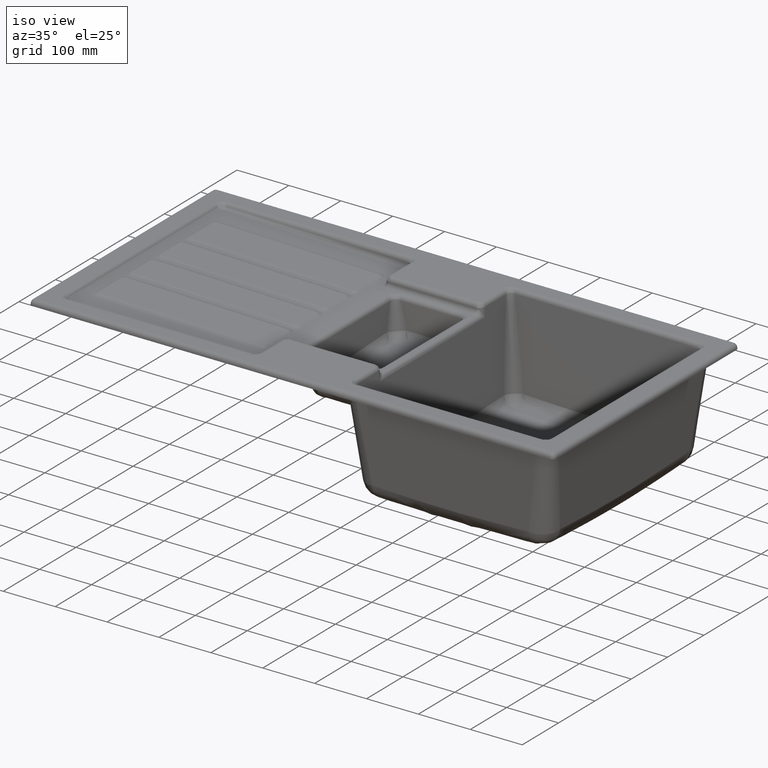
[diagram: clean part render]
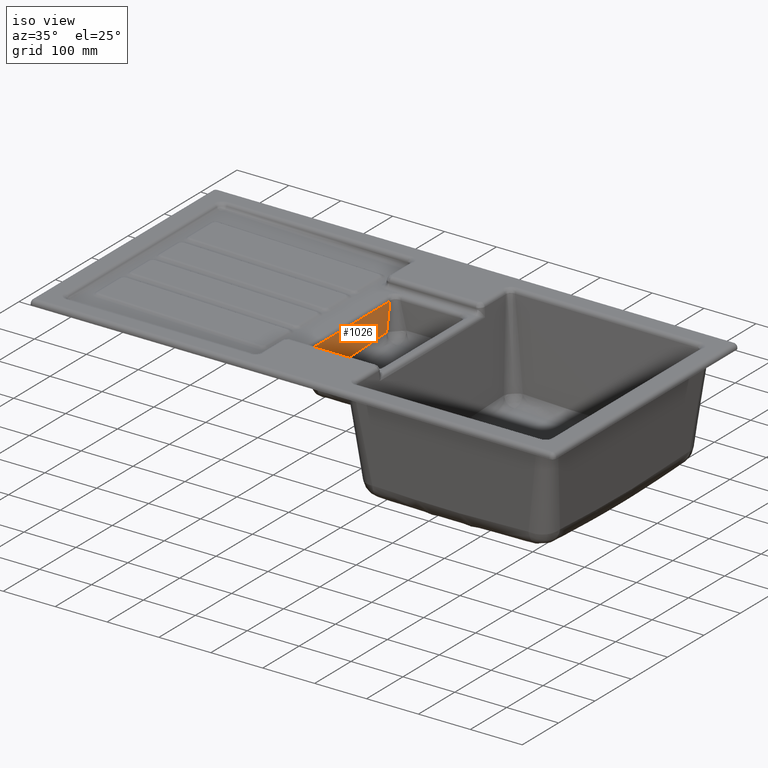
[diagram: same view with one face highlighted and labeled with its STEP entity id]
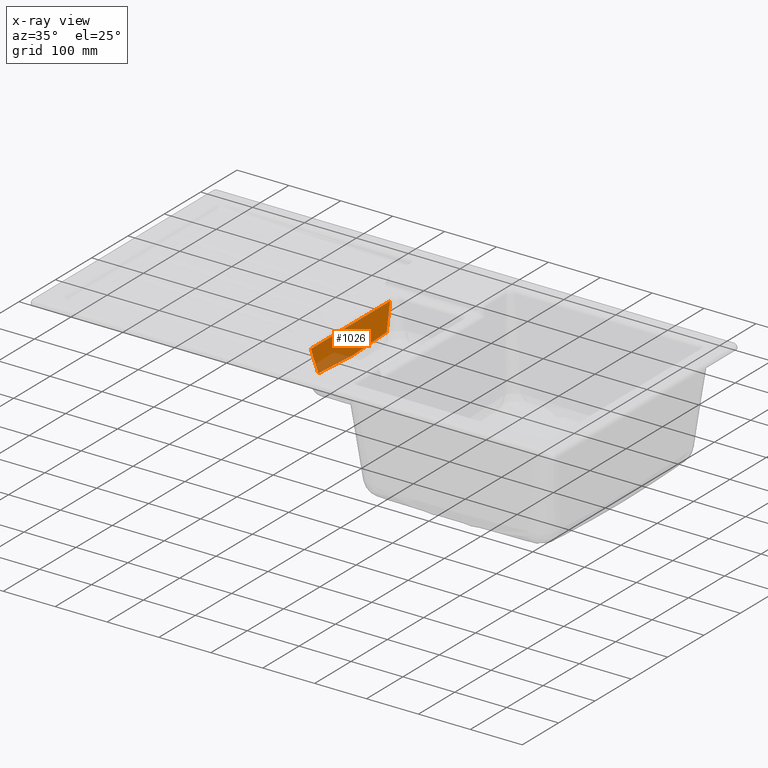
[diagram: x-ray of the same camera — body ghosted, the highlighted face saturated]
A machine part, iso view. The second image highlights one B-rep face of the part: STEP entity #1026.
The next image is the same camera in x-ray: the body ghosted, the highlighted face saturated — about 14% of this face is hidden behind the body in this view.
In plain terms, the highlighted planar face has unit normal (-0.9962, 0, -0.0872).
Its self-contained STEP definition (entity closure, byte-faithful):
#262=FACE_OUTER_BOUND('',#1653,.T.);
#658=(
BOUNDED_CURVE()
B_SPLINE_CURVE(3,(#7192,#7193,#7194,#7195,#7196,#7197,#7198,#7199,#7200,
#7201,#7202,#7203,#7204,#7205),.UNSPECIFIED.,.F.,.F.)
B_SPLINE_CURVE_WITH_KNOTS((4,2,2,2,2,2,4),(0.,0.25,0.375,0.5,0.625,0.75,
1.),.UNSPECIFIED.)
CURVE()
GEOMETRIC_REPRESENTATION_ITEM()
RATIONAL_B_SPLINE_CURVE((1.,1.,1.,1.,1.,1.,1.,1.,1.,1.,1.,1.,1.,1.))
REPRESENTATION_ITEM('')
);
#962=PLANE('',#6312);
#1026=ADVANCED_FACE('',(#262),#962,.F.);
#1653=EDGE_LOOP('',(#2127,#2128,#2129,#2130));
#2127=ORIENTED_EDGE('',*,*,#4657,.T.);
#2128=ORIENTED_EDGE('',*,*,#4658,.T.);
#2129=ORIENTED_EDGE('',*,*,#4659,.T.);
#2130=ORIENTED_EDGE('',*,*,#4635,.F.);
#4050=VERTEX_POINT('',#7191);
#4051=VERTEX_POINT('',#7206);
#4067=VERTEX_POINT('',#7795);
#4068=VERTEX_POINT('',#7800);
#4635=EDGE_CURVE('',#4050,#4051,#658,.T.);
#4657=EDGE_CURVE('',#4050,#4067,#5626,.T.);
#4658=EDGE_CURVE('',#4067,#4068,#5627,.T.);
#4659=EDGE_CURVE('',#4068,#4051,#5628,.T.);
#5626=B_SPLINE_CURVE_WITH_KNOTS('',3,(#7791,#7792,#7793,#7794),
 .UNSPECIFIED.,.F.,.F.,(4,4),(0.,1.),.UNSPECIFIED.);
#5627=B_SPLINE_CURVE_WITH_KNOTS('',3,(#7796,#7797,#7798,#7799),
 .UNSPECIFIED.,.F.,.F.,(4,4),(0.,1.),.UNSPECIFIED.);
#5628=B_SPLINE_CURVE_WITH_KNOTS('',3,(#7801,#7802,#7803,#7804),
 .UNSPECIFIED.,.F.,.F.,(4,4),(0.,1.),.UNSPECIFIED.);
#6312=AXIS2_PLACEMENT_3D('',#7805,#6540,#6541);
#6540=DIRECTION('',(-0.996194698091746,0.,-0.0871557427476581));
#6541=DIRECTION('',(0.0871557427476581,0.,-0.996194698091746));
#7191=CARTESIAN_POINT('',(444.302106398577,349.038574886478,-72.0334057533042));
#7192=CARTESIAN_POINT('',(444.302106398577,349.038574886478,-72.0334057533042));
#7193=CARTESIAN_POINT('',(444.388803132486,333.384347427839,-73.0243539563531));
#7194=CARTESIAN_POINT('',(444.472996315442,317.728649857659,-73.9866864410832));
#7195=CARTESIAN_POINT('',(444.57783736674,294.235646727445,-75.1850251408918));
#7196=CARTESIAN_POINT('',(444.608954058732,286.402911776484,-75.5406905578454));
#7197=CARTESIAN_POINT('',(444.654116657417,270.729714293858,-76.0569014229529));
#7198=CARTESIAN_POINT('',(444.66756899259,262.888983063959,-76.210662317572));
#7199=CARTESIAN_POINT('',(444.667660752847,247.195382969382,-76.2117111421066));
#7200=CARTESIAN_POINT('',(444.654274171344,239.341194304679,-76.0587018153783));
#7201=CARTESIAN_POINT('',(444.609155832157,223.650995142931,-75.5429968386507));
#7202=CARTESIAN_POINT('',(444.578030576143,215.810715852084,-75.1872335344765));
#7203=CARTESIAN_POINT('',(444.473135205456,192.296360265861,-73.9882739612095));
#7204=CARTESIAN_POINT('',(444.388871995909,176.628086764597,-73.025141068885));
#7205=CARTESIAN_POINT('',(444.302106398599,160.961425117388,-72.0334057535489));
#7206=CARTESIAN_POINT('',(444.302106398599,160.961425117388,-72.0334057535489));
#7791=CARTESIAN_POINT('',(444.302106398577,349.038574886478,-72.033405753304));
#7792=CARTESIAN_POINT('',(442.92236689925,354.028089965555,-56.2629111118079));
#7793=CARTESIAN_POINT('',(441.542627399923,359.017605044632,-40.4924164703117));
#7794=CARTESIAN_POINT('',(440.162887900595,364.00712012371,-24.7219218288156));
#7795=CARTESIAN_POINT('',(440.162887900596,364.007120123709,-24.7219218288155));
#7796=CARTESIAN_POINT('',(440.162887900595,364.007120123709,-24.7219218288156));
#7797=CARTESIAN_POINT('',(440.162887900595,291.335706708089,-24.7219218288156));
#7798=CARTESIAN_POINT('',(440.162887900595,218.664293292468,-24.7219218288156));
#7799=CARTESIAN_POINT('',(440.162887900595,145.992879876848,-24.7219218288156));
#7800=CARTESIAN_POINT('',(440.162887900596,145.992879876848,-24.7219218288155));
#7801=CARTESIAN_POINT('',(440.162887900595,145.992879876848,-24.7219218288154));
#7802=CARTESIAN_POINT('',(441.54262739993,150.982394957028,-40.4924164703932));
#7803=CARTESIAN_POINT('',(442.922366899264,155.971910037208,-56.262911111971));
#7804=CARTESIAN_POINT('',(444.302106398599,160.961425117388,-72.0334057535488));
#7805=CARTESIAN_POINT('',(438.,132.,0.));